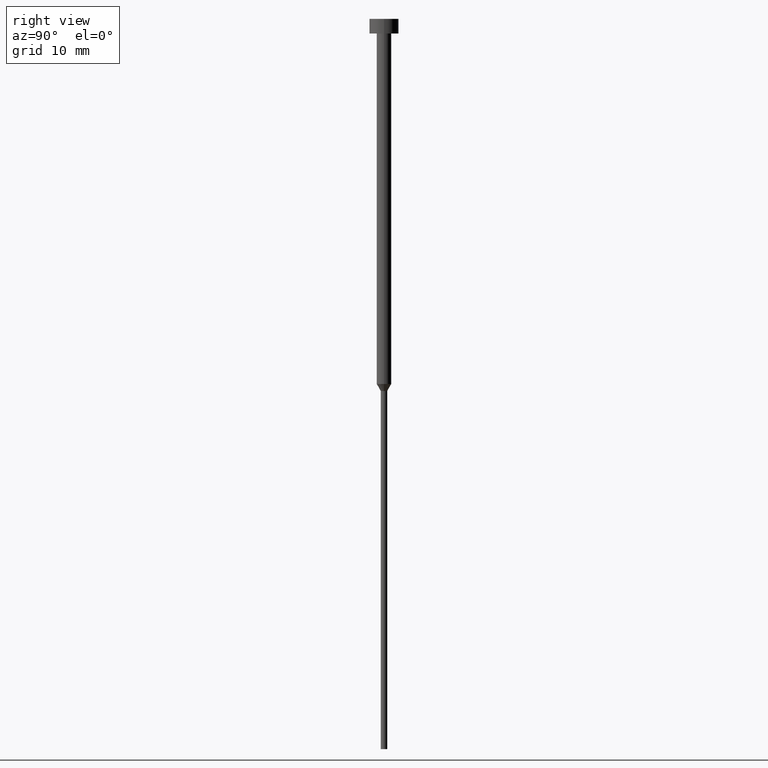
[diagram: clean part render]
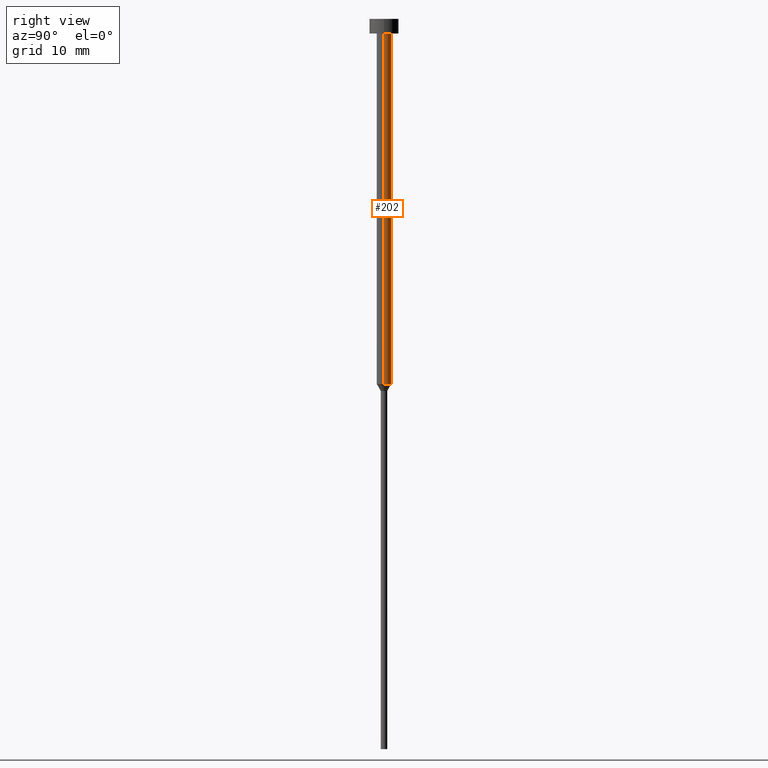
[diagram: same view with one face highlighted and labeled with its STEP entity id]
A machine part, right view. The second image highlights one B-rep face of the part: STEP entity #202.
In plain terms, the highlighted cylindrical surface (edge-blend (fillet) strip) has radius 1 mm, axis along (-0, -0, 1).
Its self-contained STEP definition (entity closure, byte-faithful):
#2 = CARTESIAN_POINT ( 'NONE',  ( 1.000000000000003331, 0.000000000000000000, 0.000000000000000000 ) ) ;
#3 = ORIENTED_EDGE ( 'NONE', *, *, #265, .T. ) ;
#12 = ORIENTED_EDGE ( 'NONE', *, *, #60, .T. ) ;
#15 = CARTESIAN_POINT ( 'NONE',  ( -1.000000000000003553, 1.224646799147357398E-16, -2.000000000000000444 ) ) ;
#16 = EDGE_CURVE ( 'NONE', #325, #320, #39, .T. ) ;
#39 = CIRCLE ( 'NONE', #240, 1.000000000000003553 ) ;
#53 = CARTESIAN_POINT ( 'NONE',  ( 1.000000000000003109, 0.000000000000000000, -50.00000000000000000 ) ) ;
#60 = EDGE_CURVE ( 'NONE', #303, #320, #87, .T. ) ;
#70 = AXIS2_PLACEMENT_3D ( 'NONE', #213, #173, #168 ) ;
#73 = CARTESIAN_POINT ( 'NONE',  ( 0.000000000000000000, 0.000000000000000000, 0.000000000000000000 ) ) ;
#87 = LINE ( 'NONE', #181, #223 ) ;
#129 = FACE_OUTER_BOUND ( 'NONE', #164, .T. ) ;
#135 = VERTEX_POINT ( 'NONE', #53 ) ;
#152 = ORIENTED_EDGE ( 'NONE', *, *, #16, .F. ) ;
#158 = DIRECTION ( 'NONE',  ( -0.000000000000000000, -0.000000000000000000, 1.000000000000000000 ) ) ;
#164 = EDGE_LOOP ( 'NONE', ( #3, #12, #152, #234 ) ) ;
#166 = DIRECTION ( 'NONE',  ( 1.000000000000000000, 0.000000000000000000, 0.000000000000000000 ) ) ;
#168 = DIRECTION ( 'NONE',  ( 1.000000000000000000, 0.000000000000000000, 0.000000000000000000 ) ) ;
#173 = DIRECTION ( 'NONE',  ( -0.000000000000000000, -0.000000000000000000, 1.000000000000000000 ) ) ;
#176 = EDGE_CURVE ( 'NONE', #135, #325, #216, .T. ) ;
#181 = CARTESIAN_POINT ( 'NONE',  ( -1.000000000000003331, 1.224646799147357151E-16, 0.000000000000000000 ) ) ;
#190 = VECTOR ( 'NONE', #263, 1000.000000000000000 ) ;
#194 = CYLINDRICAL_SURFACE ( 'NONE', #343, 1.000000000000003331 ) ;
#202 = ADVANCED_FACE ( 'NONE', ( #129 ), #194, .T. ) ;
#210 = DIRECTION ( 'NONE',  ( -0.000000000000000000, -0.000000000000000000, 1.000000000000000000 ) ) ;
#213 = CARTESIAN_POINT ( 'NONE',  ( 0.000000000000000000, 0.000000000000000000, -50.00000000000000000 ) ) ;
#216 = LINE ( 'NONE', #2, #190 ) ;
#223 = VECTOR ( 'NONE', #253, 1000.000000000000000 ) ;
#234 = ORIENTED_EDGE ( 'NONE', *, *, #176, .F. ) ;
#240 = AXIS2_PLACEMENT_3D ( 'NONE', #267, #158, #260 ) ;
#251 = CARTESIAN_POINT ( 'NONE',  ( -1.000000000000003109, 1.224646799147356905E-16, -50.00000000000000000 ) ) ;
#253 = DIRECTION ( 'NONE',  ( -0.000000000000000000, -0.000000000000000000, 1.000000000000000000 ) ) ;
#260 = DIRECTION ( 'NONE',  ( 1.000000000000000000, 0.000000000000000000, 0.000000000000000000 ) ) ;
#263 = DIRECTION ( 'NONE',  ( -0.000000000000000000, -0.000000000000000000, 1.000000000000000000 ) ) ;
#265 = EDGE_CURVE ( 'NONE', #135, #303, #270, .T. ) ;
#267 = CARTESIAN_POINT ( 'NONE',  ( 0.000000000000000000, 0.000000000000000000, -2.000000000000000444 ) ) ;
#270 = CIRCLE ( 'NONE', #70, 1.000000000000003109 ) ;
#280 = CARTESIAN_POINT ( 'NONE',  ( 1.000000000000003553, 0.000000000000000000, -2.000000000000000444 ) ) ;
#303 = VERTEX_POINT ( 'NONE', #251 ) ;
#320 = VERTEX_POINT ( 'NONE', #15 ) ;
#325 = VERTEX_POINT ( 'NONE', #280 ) ;
#343 = AXIS2_PLACEMENT_3D ( 'NONE', #73, #210, #166 ) ;